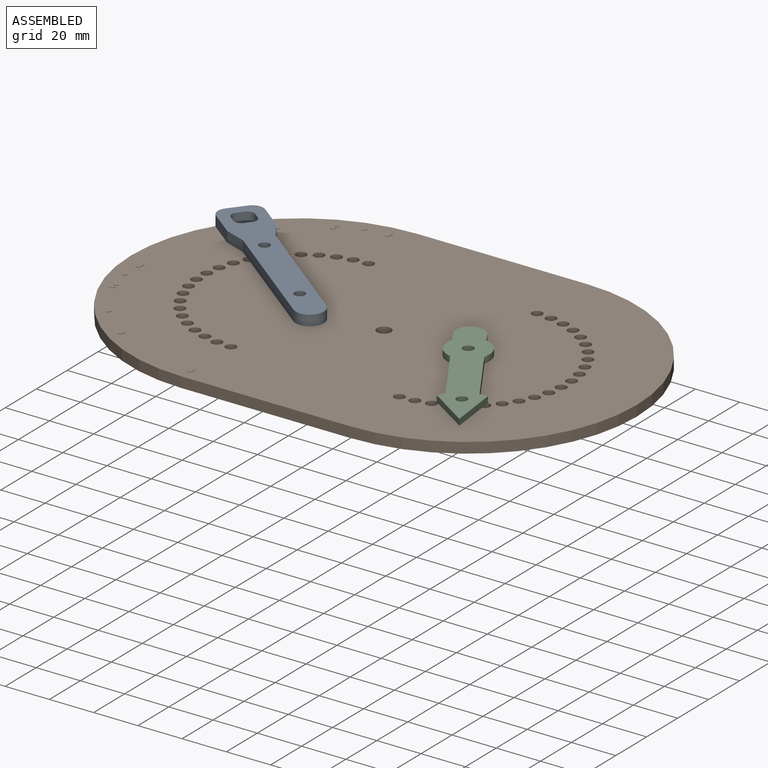
[diagram: assembled view]
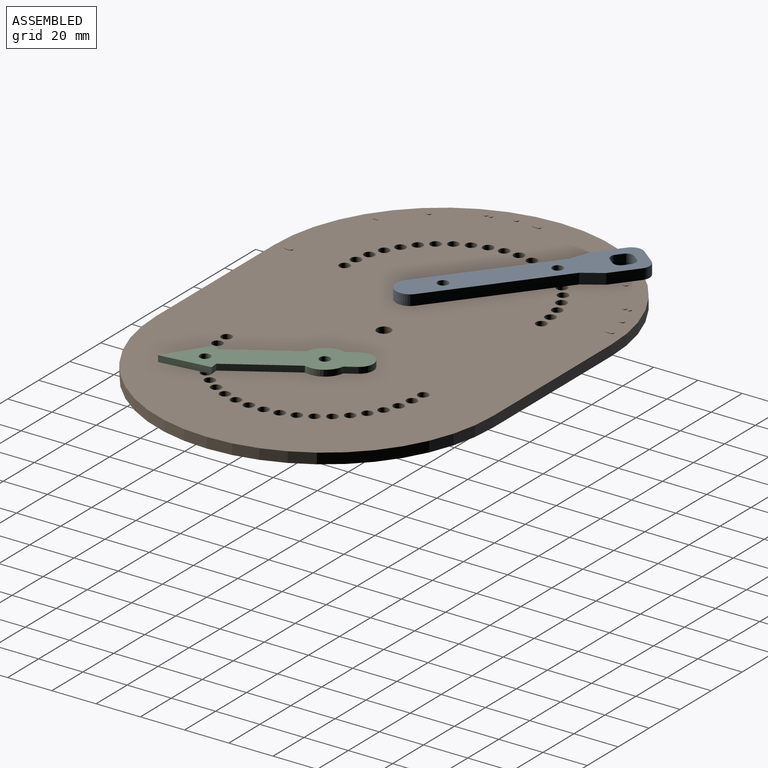
[diagram: assembled view, second angle]
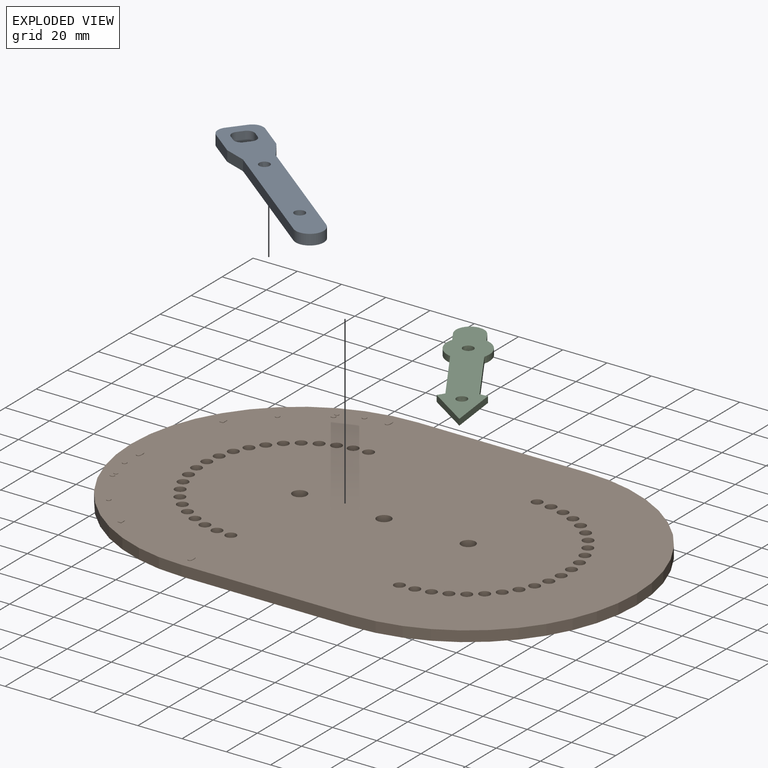
[diagram: exploded view]
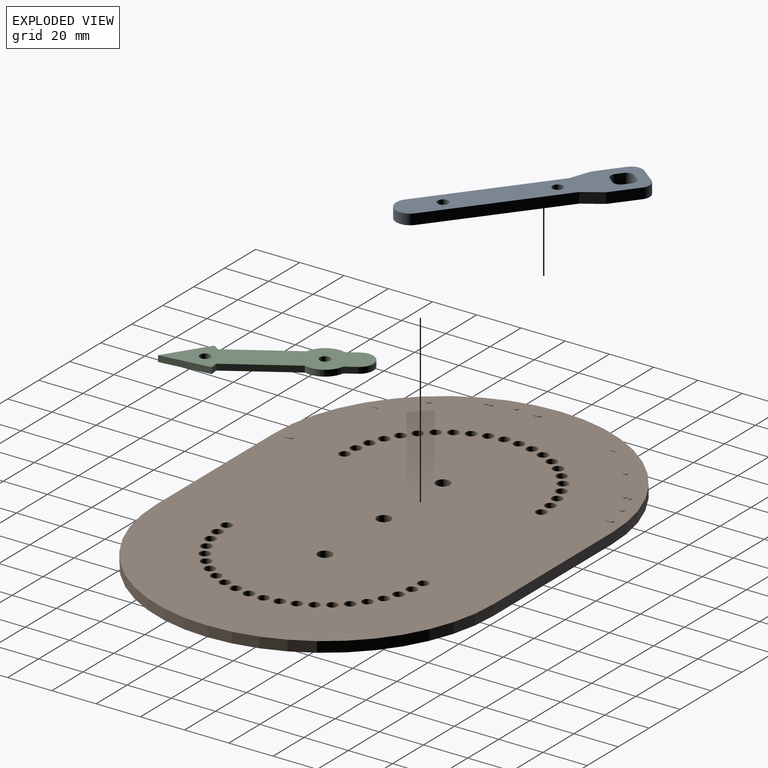
[diagram: exploded view, second angle]
ASSEMBLY  parts=3 mates=2
PART A: 22 faces, bbox 98.5x19.1x4.8 mm
  f0: plane 4.76x3.18mm, normal (-1,0,0), area 15.1mm2, adj f14,f15,f18,f21
  f1: plane 4.76x3.18mm, normal (0,1,0), area 15.1mm2, adj f14,f15,f18,f19
  f2: plane 4.76x3.18mm, normal (1,0,0), area 15.1mm2, adj f14,f15,f19,f20
  f3: plane 14x4.76mm, normal (0,-1,0), area 66.7mm2, adj f4,f14,f15,f17
  f4: plane 9.53x4.76mm, normal (0.32,-0.95,0), area 47.8mm2, adj f3,f5,f14,f15
  f5: plane 63.5x4.76mm, normal (0,-1,0), area 302.4mm2, adj f4,f6,f14,f15
  f6: cylinder r=6.35mm len=12.7mm, axis (0,0,-1), area 95mm2, adj f5,f7,f14,f15
  f7: plane 63.5x4.76mm, normal (0,1,0), area 302.4mm2, adj f6,f8,f14,f15
  f8: plane 9.53x4.76mm, normal (0.32,0.95,0), area 47.8mm2, adj f7,f9,f14,f15
  f9: plane 14x4.76mm, normal (0,1,0), area 66.7mm2, adj f8,f14,f15,f16
  f10: plane 8.92x4.76mm, normal (-1,0,0), area 42.5mm2, adj f14,f15,f16,f17
  f11: cylinder r=2.38mm len=4.76mm, axis (0,0,-1), area 71.3mm2, adj f14,f15
  f12: cylinder r=2.38mm len=4.76mm, axis (0,0,-1), area 71.3mm2, adj f14,f15
  f13: plane 4.76x3.18mm, normal (0,-1,0), area 15.1mm2, adj f14,f15,f20,f21
  f14: plane 98.45x19.08mm, normal (0,0,1), area 1256.2mm2, adj f0,f1,f2,f3,f4,f5,f6,f7
  f15: plane 98.45x19.08mm, normal (0,0,-1), area 1256.2mm2, adj f0,f1,f2,f3,f4,f5,f6,f7
  f16: cylinder r=5.08mm len=5.08mm, axis (0,0,-1), area 38mm2, adj f9,f10,f14,f15
  f17: cylinder r=5.08mm len=5.08mm, axis (0,0,1), area 38mm2, adj f3,f10,f14,f15
  f18: cylinder r=3.17mm len=4.76mm, axis (0,0,1), area 23.8mm2, adj f0,f1,f14,f15
  f19: cylinder r=3.17mm len=4.76mm, axis (0,0,-1), area 23.8mm2, adj f1,f2,f14,f15
  f20: cylinder r=3.17mm len=4.76mm, axis (0,0,1), area 23.8mm2, adj f2,f13,f14,f15
  f21: cylinder r=3.17mm len=4.76mm, axis (0,0,-1), area 23.8mm2, adj f0,f13,f14,f15
PART B: 166 faces, bbox 228.6x152.4x5 mm
  f0: plane 228.6x152.4mm, normal (0,0,1), area 28925.6mm2, adj f1,f2,f3,f4,f5,f7,f8,f9
  f1: plane 76.2x4.76mm, normal (0,1,0), area 362.9mm2, adj f0,f6,f51,f52
  f2: cylinder r=3.17mm len=6.35mm, axis (0,0,1), area 95mm2, adj f0,f6
  f3: cylinder r=3.17mm len=6.35mm, axis (0,0,1), area 95mm2, adj f0,f6
  f4: cylinder r=3.17mm len=6.35mm, axis (0,0,1), area 95mm2, adj f0,f6
  f5: plane 76.2x4.76mm, normal (0,-1,0), area 362.9mm2, adj f0,f6,f51,f52
  f6: plane 228.6x152.4mm, normal (0,0,-1), area 28975.5mm2, adj f1,f2,f3,f4,f5,f7,f8,f9
  f7: cylinder r=2.38mm len=4.76mm, axis (0,0,1), area 71.3mm2, adj f0,f6
  f8: cylinder r=2.38mm len=4.76mm, axis (0,0,1), area 71.3mm2, adj f0,f6
  f9: cylinder r=2.38mm len=4.76mm, axis (0,0,1), area 71.3mm2, adj f0,f6
  f10: cylinder r=2.38mm len=4.76mm, axis (0,0,1), area 71.3mm2, adj f0,f6
  f11: cylinder r=2.38mm len=4.76mm, axis (0,0,1), area 71.3mm2, adj f0,f6
  f12: cylinder r=2.38mm len=4.76mm, axis (0,0,1), area 71.3mm2, adj f0,f6
  f13: cylinder r=2.38mm len=4.76mm, axis (0,0,1), area 71.3mm2, adj f0,f6
  f14: cylinder r=2.38mm len=4.76mm, axis (0,0,1), area 71.3mm2, adj f0,f6
  f15: cylinder r=2.38mm len=4.76mm, axis (0,0,1), area 71.3mm2, adj f0,f6
  f16: cylinder r=2.38mm len=4.76mm, axis (0,0,1), area 71.3mm2, adj f0,f6
  f17: cylinder r=2.38mm len=4.76mm, axis (0,0,1), area 71.3mm2, adj f0,f6
  f18: cylinder r=2.38mm len=4.76mm, axis (0,0,1), area 71.3mm2, adj f0,f6
  f19: cylinder r=2.38mm len=4.76mm, axis (0,0,1), area 71.3mm2, adj f0,f6
  f20: cylinder r=2.38mm len=4.76mm, axis (0,0,1), area 71.3mm2, adj f0,f6
  f21: cylinder r=2.38mm len=4.76mm, axis (0,0,1), area 71.3mm2, adj f0,f6
  f22: cylinder r=2.38mm len=4.76mm, axis (0,0,1), area 71.3mm2, adj f0,f6
  f23: cylinder r=2.38mm len=4.76mm, axis (0,0,1), area 71.3mm2, adj f0,f6
  f24: cylinder r=2.38mm len=4.76mm, axis (0,0,1), area 71.3mm2, adj f0,f6
  f25: cylinder r=2.38mm len=4.76mm, axis (0,0,1), area 71.3mm2, adj f0,f6
  f26: cylinder r=2.38mm len=4.76mm, axis (0,0,1), area 71.3mm2, adj f0,f6
  f27: cylinder r=2.38mm len=4.76mm, axis (0,0,1), area 71.3mm2, adj f0,f6
  f28: cylinder r=2.38mm len=4.76mm, axis (0,0,1), area 71.3mm2, adj f0,f6
  f29: cylinder r=2.38mm len=4.76mm, axis (0,0,1), area 71.3mm2, adj f0,f6
  f30: cylinder r=2.38mm len=4.76mm, axis (0,0,1), area 71.3mm2, adj f0,f6
  f31: cylinder r=2.38mm len=4.76mm, axis (0,0,1), area 71.3mm2, adj f0,f6
  f32: cylinder r=2.38mm len=4.76mm, axis (0,0,1), area 71.3mm2, adj f0,f6
  f33: cylinder r=2.38mm len=4.76mm, axis (0,0,1), area 71.3mm2, adj f0,f6
  f34: cylinder r=2.38mm len=4.76mm, axis (0,0,1), area 71.3mm2, adj f0,f6
  f35: cylinder r=2.38mm len=4.76mm, axis (0,0,1), area 71.3mm2, adj f0,f6
  f36: cylinder r=2.38mm len=4.76mm, axis (0,0,1), area 71.3mm2, adj f0,f6
  f37: cylinder r=2.38mm len=4.76mm, axis (0,0,1), area 71.3mm2, adj f0,f6
  f38: cylinder r=2.38mm len=4.76mm, axis (0,0,1), area 71.3mm2, adj f0,f6
  f39: cylinder r=2.38mm len=4.76mm, axis (0,0,1), area 71.3mm2, adj f0,f6
  f40: cylinder r=2.38mm len=4.76mm, axis (0,0,1), area 71.3mm2, adj f0,f6
  f41: cylinder r=2.38mm len=4.76mm, axis (0,0,1), area 71.3mm2, adj f0,f6
  f42: cylinder r=2.38mm len=4.76mm, axis (0,0,1), area 71.3mm2, adj f0,f6
  f43: cylinder r=2.38mm len=4.76mm, axis (0,0,1), area 71.3mm2, adj f0,f6
  f44: cylinder r=2.38mm len=4.76mm, axis (0,0,1), area 71.3mm2, adj f0,f6
  f45: cylinder r=2.38mm len=4.76mm, axis (0,0,1), area 71.3mm2, adj f0,f6
  f46: cylinder r=2.38mm len=4.76mm, axis (0,0,1), area 71.3mm2, adj f0,f6
  f47: cylinder r=2.38mm len=4.76mm, axis (0,0,1), area 71.3mm2, adj f0,f6
  f48: cylinder r=2.38mm len=4.76mm, axis (0,0,1), area 71.3mm2, adj f0,f6
  f49: cylinder r=2.38mm len=4.76mm, axis (0,0,1), area 71.3mm2, adj f0,f6
  f50: cylinder r=2.38mm len=4.76mm, axis (0,0,1), area 71.3mm2, adj f0,f6
  f51: cylinder r=76.2mm len=152.4mm, axis (0,0,-1), area 1140.1mm2, adj f0,f1,f5,f6
  f52: cylinder r=76.2mm len=152.4mm, axis (0,0,1), area 1140.1mm2, adj f0,f1,f5,f6
  f53: extruded ~0.78x0.47mm, area 0.2mm2, adj f0,f54,f60,f61
  f54: extruded ~1.45x0.25mm, area 0.4mm2, adj f0,f53,f55,f61
  f55: extruded ~1.47x0.25mm, area 0.4mm2, adj f0,f54,f56,f61
  f56: extruded ~0.77x0.46mm, area 0.2mm2, adj f0,f55,f57,f61
  f57: extruded ~0.79x0.45mm, area 0.2mm2, adj f0,f56,f58,f61
  f58: extruded ~1.48x0.25mm, area 0.4mm2, adj f0,f57,f59,f61
  f59: extruded ~1.46x0.25mm, area 0.4mm2, adj f0,f58,f60,f61
  f60: extruded ~0.78x0.46mm, area 0.2mm2, adj f0,f53,f59,f61
  f61: plane 3.85x2.05mm, normal (0,0,1), area 6.7mm2, adj f53,f54,f55,f56,f57,f58,f59,f60
  f62: plane 1.64x0.25mm, normal (0,-1,0), area 0.4mm2, adj f0,f63,f68,f69
  f63: plane 2.45x0.25mm, normal (1,0,0), area 0.6mm2, adj f0,f62,f64,f69
  f64: extruded ~0.25x0.17mm, area 0.1mm2, adj f0,f63,f65,f69
  f65: extruded ~0.25x0.22mm, area 0.1mm2, adj f0,f64,f66,f69
  f66: plane 1.75x1.19mm, normal (-0.83,0.56,0), area 0.5mm2, adj f0,f65,f67,f69
  f67: plane 0.25x0.24mm, normal (-0.81,0.59,0), area 0.1mm2, adj f0,f66,f68,f69
  f68: plane 0.25x0.07mm, normal (-0.78,0.63,0), area 0mm2, adj f0,f62,f67,f69
  f69: plane 2.45x1.64mm, normal (0,0,1), area 1.9mm2, adj f62,f63,f64,f65,f66,f67,f68
  f70: extruded ~0.68x0.29mm, area 0.2mm2, adj f0,f71,f77,f78
  f71: extruded ~0.8x0.25mm, area 0.2mm2, adj f0,f70,f72,f78
  f72: extruded ~0.79x0.25mm, area 0.2mm2, adj f0,f71,f73,f78
  f73: extruded ~0.7x0.28mm, area 0.2mm2, adj f0,f72,f74,f78
  f74: extruded ~0.68x0.25mm, area 0.2mm2, adj f0,f73,f75,f78
  f75: extruded ~0.67x0.26mm, area 0.2mm2, adj f0,f74,f76,f78
  f76: extruded ~0.89x0.27mm, area 0.2mm2, adj f0,f75,f77,f78
  f77: extruded ~0.69x0.35mm, area 0.2mm2, adj f0,f70,f76,f78
  f78: plane 2.15x1.88mm, normal (0,0,1), area 3.3mm2, adj f70,f71,f72,f73,f74,f75,f76,f77
  f79: extruded ~0.65x0.25mm, area 0.2mm2, adj f0,f80,f85,f86
  f80: extruded ~0.64x0.25mm, area 0.2mm2, adj f0,f79,f81,f86
  f81: extruded ~0.88x0.8mm, area 0.3mm2, adj f0,f80,f82,f86
  f82: extruded ~0.65x0.25mm, area 0.2mm2, adj f0,f81,f83,f86
  f83: extruded ~0.6x0.25mm, area 0.2mm2, adj f0,f82,f84,f86
  f84: extruded ~0.62x0.25mm, area 0.2mm2, adj f0,f83,f85,f86
  f85: extruded ~0.65x0.25mm, area 0.2mm2, adj f0,f79,f84,f86
  f86: plane 1.76x1.64mm, normal (0,0,1), area 2.4mm2, adj f79,f80,f81,f82,f83,f84,f85
  f87: extruded ~0.74x0.25mm, area 0.2mm2, adj f0,f88,f93,f94
  f88: extruded ~0.76x0.25mm, area 0.2mm2, adj f0,f87,f89,f94
  f89: extruded ~0.67x0.26mm, area 0.2mm2, adj f0,f88,f90,f94
  f90: extruded ~0.74x0.25mm, area 0.2mm2, adj f0,f89,f91,f94
  f91: extruded ~0.72x0.25mm, area 0.2mm2, adj f0,f90,f92,f94
  f92: extruded ~0.66x0.26mm, area 0.2mm2, adj f0,f91,f93,f94
  f93: extruded ~1x0.98mm, area 0.4mm2, adj f0,f87,f92,f94
  f94: plane 1.98x1.88mm, normal (0,0,1), area 3.1mm2, adj f87,f88,f89,f90,f91,f92,f93
  f95: extruded ~0.36x0.35mm, area 0.1mm2, adj f0,f96,f103,f104
  f96: extruded ~0.51x0.25mm, area 0.1mm2, adj f0,f95,f97,f104
  f97: extruded ~0.94x0.27mm, area 0.3mm2, adj f0,f96,f98,f104
  f98: extruded ~0.72x0.36mm, area 0.2mm2, adj f0,f97,f99,f104
  f99: extruded ~0.71x0.31mm, area 0.2mm2, adj f0,f98,f100,f104
  f100: extruded ~0.82x0.26mm, area 0.2mm2, adj f0,f99,f101,f104
  f101: extruded ~0.84x0.26mm, area 0.2mm2, adj f0,f100,f102,f104
  f102: extruded ~0.7x0.31mm, area 0.2mm2, adj f0,f101,f103,f104
  f103: extruded ~0.5x0.25mm, area 0.1mm2, adj f0,f95,f102,f104
  f104: plane 2.28x1.95mm, normal (0,0,1), area 3.6mm2, adj f95,f96,f97,f98,f99,f100,f101,f102
  f105: extruded ~0.81x0.49mm, area 0.3mm2, adj f0,f106,f112,f113
  f106: extruded ~1.51x0.26mm, area 0.4mm2, adj f0,f105,f107,f113
  f107: extruded ~1.53x0.25mm, area 0.4mm2, adj f0,f106,f108,f113
  f108: extruded ~0.8x0.47mm, area 0.3mm2, adj f0,f107,f109,f113
  f109: extruded ~0.82x0.47mm, area 0.3mm2, adj f0,f108,f110,f113
  f110: extruded ~1.53x0.25mm, area 0.4mm2, adj f0,f109,f111,f113
  f111: extruded ~1.52x0.25mm, area 0.4mm2, adj f0,f110,f112,f113
  f112: extruded ~0.81x0.48mm, area 0.3mm2, adj f0,f105,f111,f113
  f113: plane 4x2.12mm, normal (0,0,1), area 7.2mm2, adj f105,f106,f107,f108,f109,f110,f111,f112
  f114: plane 1.7x0.25mm, normal (0,-1,0), area 0.4mm2, adj f0,f115,f120,f121
  f115: plane 2.54x0.25mm, normal (1,0,0), area 0.6mm2, adj f0,f114,f116,f121
  f116: extruded ~0.25x0.18mm, area 0.1mm2, adj f0,f115,f117,f121
  f117: extruded ~0.25x0.22mm, area 0.1mm2, adj f0,f116,f118,f121
  f118: plane 1.81x1.23mm, normal (-0.83,0.56,0), area 0.6mm2, adj f0,f117,f119,f121
  f119: plane 0.25x0.25mm, normal (-0.81,0.59,0), area 0.1mm2, adj f0,f118,f120,f121
  f120: plane 0.25x0.07mm, normal (-0.78,0.63,0), area 0mm2, adj f0,f114,f119,f121
  f121: plane 2.54x1.7mm, normal (0,0,1), area 2.1mm2, adj f114,f115,f116,f117,f118,f119,f120
  f122: extruded ~0.7x0.3mm, area 0.2mm2, adj f0,f123,f129,f130
  f123: extruded ~0.83x0.26mm, area 0.2mm2, adj f0,f122,f124,f130
  f124: extruded ~0.82x0.26mm, area 0.2mm2, adj f0,f123,f125,f130
  f125: extruded ~0.72x0.29mm, area 0.2mm2, adj f0,f124,f126,f130
  f126: extruded ~0.7x0.25mm, area 0.2mm2, adj f0,f125,f127,f130
  f127: extruded ~0.7x0.27mm, area 0.2mm2, adj f0,f126,f128,f130
  f128: extruded ~0.92x0.28mm, area 0.2mm2, adj f0,f127,f129,f130
  f129: extruded ~0.71x0.36mm, area 0.2mm2, adj f0,f122,f128,f130
  f130: plane 2.23x1.95mm, normal (0,0,1), area 3.5mm2, adj f122,f123,f124,f125,f126,f127,f128,f129
  f131: extruded ~0.66x0.25mm, area 0.2mm2, adj f0,f132,f137,f138
  f132: extruded ~0.65x0.25mm, area 0.2mm2, adj f0,f131,f133,f138
  f133: extruded ~0.9x0.82mm, area 0.4mm2, adj f0,f132,f134,f138
  f134: extruded ~0.66x0.25mm, area 0.2mm2, adj f0,f133,f135,f138
  f135: extruded ~0.61x0.25mm, area 0.2mm2, adj f0,f134,f136,f138
  f136: extruded ~0.63x0.25mm, area 0.2mm2, adj f0,f135,f137,f138
  f137: extruded ~0.66x0.25mm, area 0.2mm2, adj f0,f131,f136,f138
  f138: plane 1.79x1.67mm, normal (0,0,1), area 2.5mm2, adj f131,f132,f133,f134,f135,f136,f137
  f139: extruded ~0.75x0.25mm, area 0.2mm2, adj f0,f140,f145,f146
  f140: extruded ~0.77x0.25mm, area 0.2mm2, adj f0,f139,f141,f146
  f141: extruded ~0.68x0.27mm, area 0.2mm2, adj f0,f140,f142,f146
  f142: extruded ~0.75x0.25mm, area 0.2mm2, adj f0,f141,f143,f146
  f143: extruded ~0.73x0.25mm, area 0.2mm2, adj f0,f142,f144,f146
  f144: extruded ~0.67x0.26mm, area 0.2mm2, adj f0,f143,f145,f146
  f145: extruded ~1.02x1mm, area 0.4mm2, adj f0,f139,f144,f146
  f146: plane 2.01x1.91mm, normal (0,0,1), area 3.2mm2, adj f139,f140,f141,f142,f143,f144,f145
  f147: extruded ~0.36x0.35mm, area 0.1mm2, adj f0,f148,f155,f156
  f148: extruded ~0.51x0.25mm, area 0.1mm2, adj f0,f147,f149,f156
  f149: extruded ~0.94x0.27mm, area 0.3mm2, adj f0,f148,f150,f156
  f150: extruded ~0.72x0.36mm, area 0.2mm2, adj f0,f149,f151,f156
  f151: extruded ~0.7x0.3mm, area 0.2mm2, adj f0,f150,f152,f156
  f152: extruded ~0.82x0.26mm, area 0.2mm2, adj f0,f151,f153,f156
  f153: extruded ~0.84x0.26mm, area 0.2mm2, adj f0,f152,f154,f156
  f154: extruded ~0.7x0.31mm, area 0.2mm2, adj f0,f153,f155,f156
  f155: extruded ~0.5x0.25mm, area 0.1mm2, adj f0,f147,f154,f156
  f156: plane 2.27x1.95mm, normal (0,0,1), area 3.6mm2, adj f147,f148,f149,f150,f151,f152,f153,f154
  f157: extruded ~0.79x0.48mm, area 0.2mm2, adj f0,f158,f164,f165
  f158: extruded ~1.49x0.25mm, area 0.4mm2, adj f0,f157,f159,f165
  f159: extruded ~1.51x0.25mm, area 0.4mm2, adj f0,f158,f160,f165
  f160: extruded ~0.79x0.47mm, area 0.2mm2, adj f0,f159,f161,f165
  f161: extruded ~0.81x0.46mm, area 0.3mm2, adj f0,f160,f162,f165
  f162: extruded ~1.51x0.25mm, area 0.4mm2, adj f0,f161,f163,f165
  f163: extruded ~1.5x0.25mm, area 0.4mm2, adj f0,f162,f164,f165
  f164: extruded ~0.8x0.47mm, area 0.2mm2, adj f0,f157,f163,f165
  f165: plane 3.94x2.09mm, normal (0,0,1), area 7mm2, adj f157,f158,f159,f160,f161,f162,f163,f164
PART C: 15 faces, bbox 81x19.1x2.8 mm
  f0: plane 5.6x2.79mm, normal (0,1,0), area 15.6mm2, adj f1,f11,f13,f14
  f1: cylinder r=9.53mm len=14.2mm, axis (0,0,-1), area 44.8mm2, adj f0,f2,f13,f14
  f2: plane 32.91x2.79mm, normal (0,1,0), area 91.9mm2, adj f1,f3,f13,f14
  f3: plane 3.18x2.79mm, normal (0.91,0.42,0), area 9.8mm2, adj f2,f4,f13,f14
  f4: plane 20.43x9.53mm, normal (-0.42,0.91,0), area 63mm2, adj f3,f5,f13,f14
  f5: plane 20.43x9.53mm, normal (-0.42,-0.91,0), area 63mm2, adj f4,f6,f13,f14
  f6: plane 3.18x2.79mm, normal (0.91,-0.42,0), area 9.8mm2, adj f5,f7,f13,f14
  f7: plane 32.91x2.79mm, normal (0,-1,0), area 91.9mm2, adj f6,f8,f13,f14
  f8: cylinder r=9.53mm len=14.2mm, axis (0,0,-1), area 44.8mm2, adj f7,f9,f13,f14
  f9: plane 5.6x2.79mm, normal (0,-1,0), area 15.6mm2, adj f8,f11,f13,f14
  f10: cylinder r=2.38mm len=4.76mm, axis (0,0,-1), area 41.8mm2, adj f13,f14
  f11: cylinder r=6.35mm len=12.7mm, axis (0,0,-1), area 55.7mm2, adj f0,f9,f13,f14
  f12: cylinder r=2.38mm len=4.76mm, axis (0,0,-1), area 41.8mm2, adj f13,f14
  f13: plane 80.96x19.05mm, normal (0,0,1), area 977.6mm2, adj f0,f1,f2,f3,f4,f5,f6,f7
  f14: plane 80.96x19.05mm, normal (0,0,-1), area 977.6mm2, adj f0,f1,f2,f3,f4,f5,f6,f7
PLACE A rot(axis=(0,0,-1),37.9deg) t=(-1.49,13.53,21.55)mm
PLACE B t=(21.58,25.24,21.55)mm fixed
PLACE C rot(axis=(0.49,0.87,0),180deg) t=(49.6,41.4,24.34)mm
MATE revolute B.f4 <-> A.f11  axis (0,0,1) through (-16.52,25.24,21.55)mm
MATE revolute C.f1 <-> B.f51  axis (0,0,-1) through (59.68,25.24,21.55)mm
